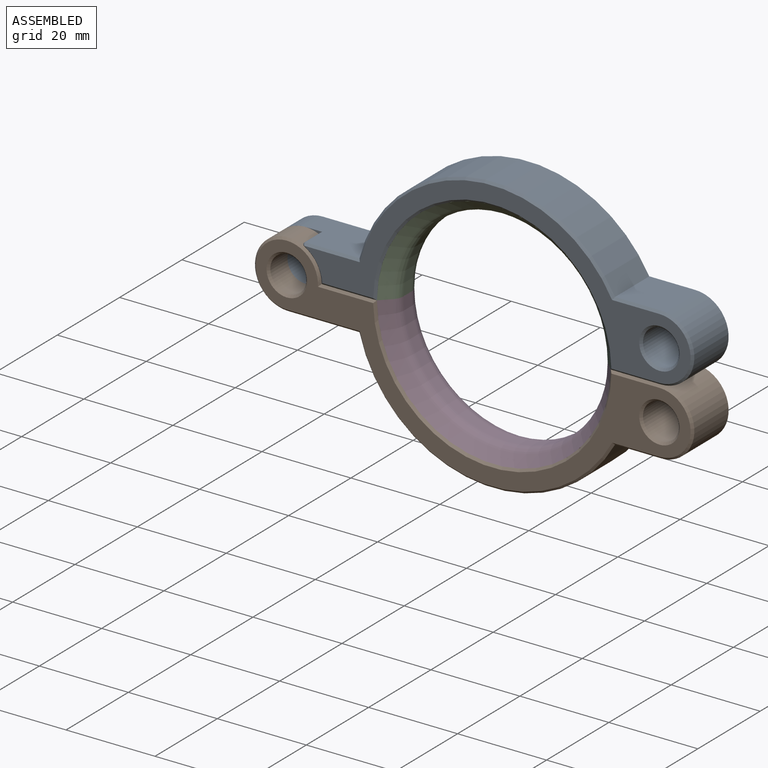
[diagram: assembled view]
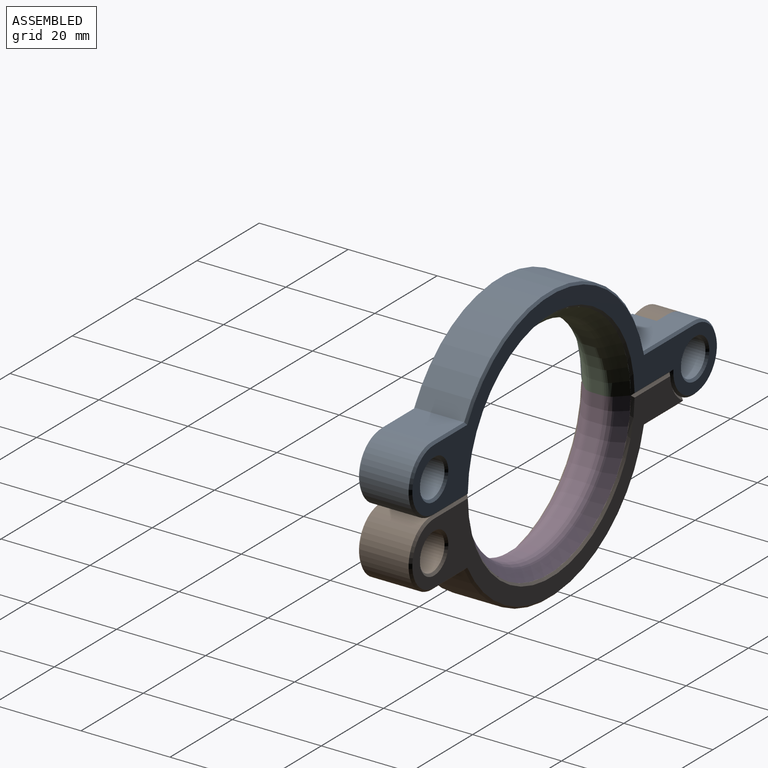
[diagram: assembled view, second angle]
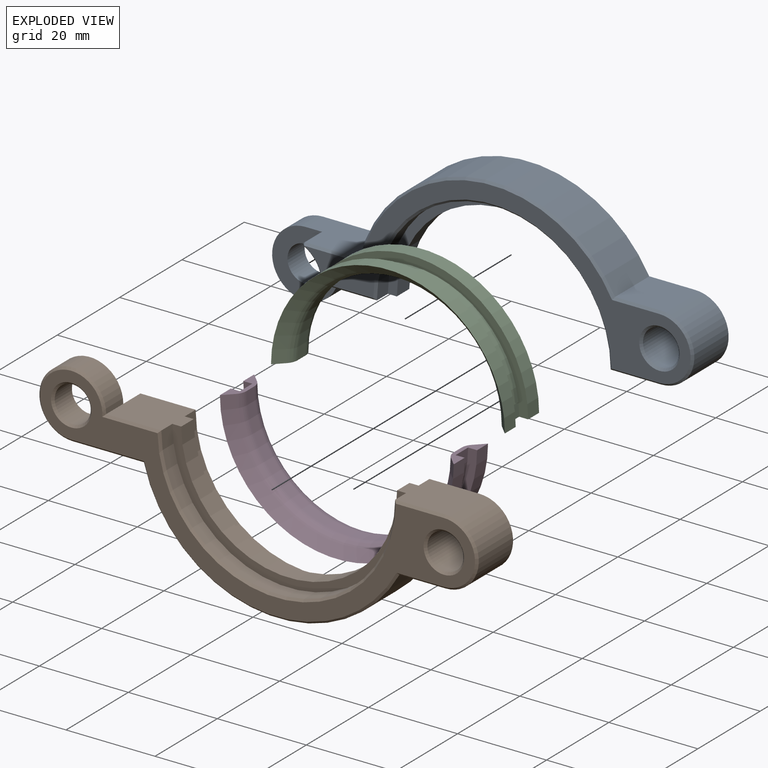
[diagram: exploded view]
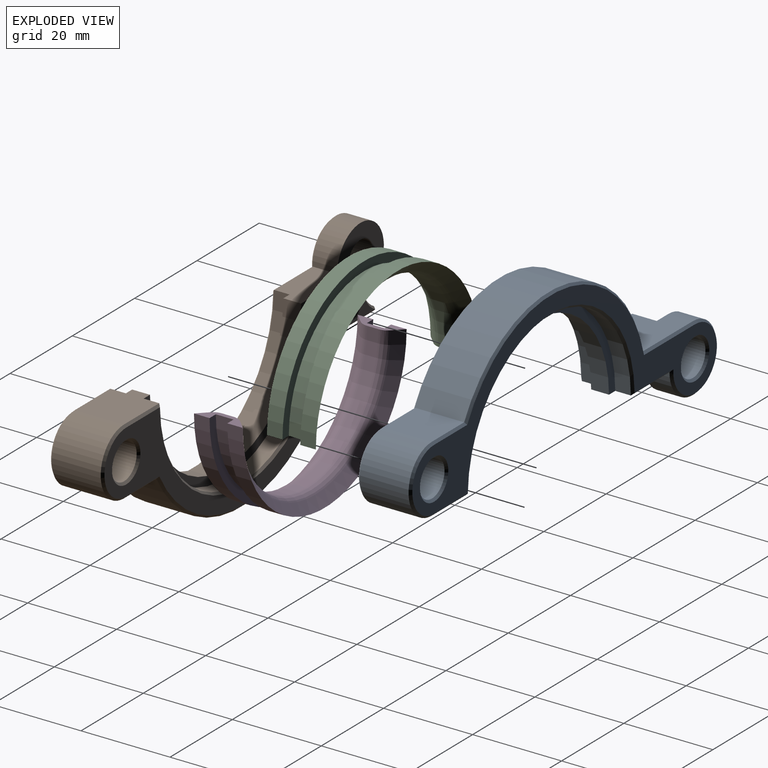
[diagram: exploded view, second angle]
ASSEMBLY  parts=4 mates=3
PART A: 39 faces, bbox 98.8x12x38.6 mm
  f0: cylinder r=26.28mm len=52.55mm, axis (0,1,0), area 288.9mm2, adj f9,f11,f20,f38
  f1: cylinder r=7.5mm len=15mm, axis (0,1,0), area 194.4mm2, adj f3,f8,f9,f23
  f2: cylinder r=4.05mm len=8.1mm, axis (0,1,0), area 140mm2, adj f3,f25
  f3: plane 15x15mm, normal (0,-1,0), area 126.1mm2, adj f1,f2,f5,f8,f15
  f4: plane 97.76x37.6mm, normal (0,1,0), area 624.8mm2, adj f16,f17,f18,f19,f20,f21,f22,f23
  f5: cylinder r=7.5mm len=6.56mm, axis (0,1,0), area 43.9mm2, adj f3,f9,f15,f34
  f6: plane 11x10.33mm, normal (0,0,1), area 113.6mm2, adj f7,f12,f17,f27
  f7: cylinder r=31.1mm len=57.43mm, axis (0,1,0), area 819.3mm2, adj f6,f8,f19,f29
  f8: plane 16x11mm, normal (0,0,1), area 154.7mm2, adj f1,f3,f7,f15,f21,f31
  f9: plane 14.43x11mm, normal (0,0,-1), area 144.6mm2, adj f0,f1,f5,f10,f22,f32,f36,f37
  f10: cylinder r=26.28mm len=52.55mm, axis (0,1,0), area 288.9mm2, adj f9,f11,f30,f37
  f11: plane 13.32x11mm, normal (0,0,-1), area 132.4mm2, adj f0,f10,f12,f18,f28,f36,f37,f38
  f12: cylinder r=7.5mm len=15mm, axis (0,1,0), area 259.2mm2, adj f6,f11,f16,f26
  f13: cylinder r=4.05mm len=11mm, axis (0,1,0), area 279.9mm2, adj f24,f35
  f14: plane 86.89x30.1mm, normal (0,-1,0), area 527.2mm2, adj f26,f27,f28,f29,f30,f31,f32,f34
  f15: cylinder r=0.5mm len=5.5mm, axis (0,1,0), area 7.2mm2, adj f3,f5,f8,f33
  f16: cone r=7.5mm half-angle=45deg, axis (0,-1,0), area 16.1mm2, adj f4,f12,f17,f18
  f17: plane 10.63x0.5mm, normal (0,0.71,0.71), area 7.4mm2, adj f4,f6,f16,f19
  f18: plane 11.3x0.5mm, normal (0,0.71,-0.71), area 7.8mm2, adj f4,f11,f16,f20
  f19: cone r=31.1mm half-angle=45deg, axis (0,-1,0), area 52.5mm2, adj f4,f7,f17,f21
  f20: cone r=26.78mm half-angle=45deg, axis (0,1,0), area 58.6mm2, adj f0,f4,f18,f22
  f21: plane 16.4x0.5mm, normal (0,0.71,0.71), area 11.5mm2, adj f4,f8,f19,f23
  f22: plane 12.94x0.52mm, normal (0,0.71,-0.71), area 8.8mm2, adj f4,f9,f20,f23
  f23: cone r=7.5mm half-angle=45deg, axis (0,-1,0), area 24.3mm2, adj f1,f4,f21,f22
  f24: cone r=4.55mm half-angle=45deg, axis (0,1,0), area 19.1mm2, adj f4,f13
  f25: cone r=4.55mm half-angle=45deg, axis (0,1,0), area 19.1mm2, adj f2,f4
  f26: cone r=7mm half-angle=45deg, axis (0,1,0), area 16.1mm2, adj f12,f14,f27,f28
  f27: plane 10.63x0.5mm, normal (0,-0.71,0.71), area 7.4mm2, adj f6,f14,f26,f29
  f28: plane 11.3x0.5mm, normal (0,-0.71,-0.71), area 7.8mm2, adj f11,f14,f26,f30
  f29: cone r=30.6mm half-angle=45deg, axis (0,1,0), area 52.5mm2, adj f7,f14,f27,f31
  f30: cone r=26.28mm half-angle=45deg, axis (0,-1,0), area 58.6mm2, adj f10,f14,f28,f32
  f31: plane 12.52x0.5mm, normal (0,-0.71,0.71), area 8.7mm2, adj f8,f14,f29,f33
  f32: plane 12.42x0.51mm, normal (0,-0.71,-0.71), area 8.4mm2, adj f9,f14,f30,f34
  f33: cone r=0.5mm half-angle=45deg, axis (0,1,0), area 0.5mm2, adj f15,f31,f34
  f34: cone r=7.5mm half-angle=45deg, axis (0,-1,0), area 5.7mm2, adj f5,f14,f32,f33
  f35: cone r=4.05mm half-angle=45deg, axis (0,-1,0), area 19.1mm2, adj f13,f14
  f36: cylinder r=24.26mm len=48.51mm, axis (0,1,0), area 304.8mm2, adj f9,f11,f37,f38
  f37: plane 52.55x26.28mm, normal (0,-1,0), area 160.4mm2, adj f9,f10,f11,f36
  f38: plane 52.55x26.28mm, normal (0,1,0), area 160.4mm2, adj f0,f9,f11,f36
PART B: same geometry as A
PART C: 12 faces, bbox 56.9x11x28.4 mm
  f0: cylinder r=24.26mm len=48.51mm, axis (0,1,0), area 304.8mm2, adj f1,f3,f6,f8
  f1: plane 11x3mm, normal (0,0,-1), area 15.5mm2, adj f0,f2,f4,f5,f6,f7,f8,f9
  f2: cylinder r=23.28mm len=46.55mm, axis (0,1,0), area 183.9mm2, adj f1,f3,f10,f11
  f3: plane 11x3mm, normal (0,0,-1), area 15.5mm2, adj f0,f2,f4,f5,f6,f7,f8,f9
  f4: cone r=26.28mm half-angle=45deg, axis (0,-1,0), area 237.7mm2, adj f1,f3,f5,f11
  f5: cylinder r=26.28mm len=52.55mm, axis (0,1,0), area 288.9mm2, adj f1,f3,f4,f6
  f6: plane 52.55x26.28mm, normal (0,1,0), area 160.4mm2, adj f0,f1,f3,f5
  f7: cone r=26.78mm half-angle=45deg, axis (0,1,0), area 237.7mm2, adj f1,f3,f9,f10
  f8: plane 52.55x26.28mm, normal (0,-1,0), area 160.4mm2, adj f0,f1,f3,f9
  f9: cylinder r=26.28mm len=52.55mm, axis (0,-1,0), area 288.9mm2, adj f1,f3,f7,f8
  f10: torus R=26.28mm, axis (0,1,0), area 174.5mm2, adj f1,f2,f3,f7
  f11: torus R=26.28mm, axis (0,1,0), area 174.5mm2, adj f1,f2,f3,f4
PART D: same geometry as C
PLACE A at identity
PLACE B rot(axis=(1,0,0),180deg) t=(0,-12,0)mm
PLACE C at identity
PLACE D rot(axis=(1,0,0),180deg) t=(0,-12,0)mm
MATE cylindrical D.f0 <-> B.f7  axis (0,-1,0) through (46.18,-6,0)mm
MATE revolute B.f2 <-> A.f2  axis (0,1,0) through (0,-6,0)mm
MATE cylindrical C.f0 <-> A.f7  axis (0,1,0) through (46.18,-6,0)mm
